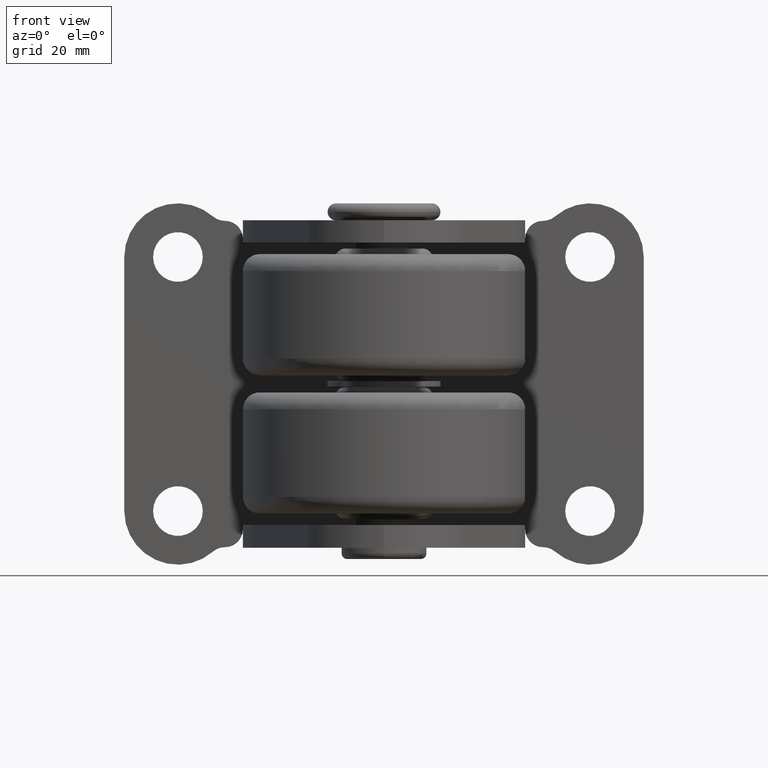
[diagram: clean part render]
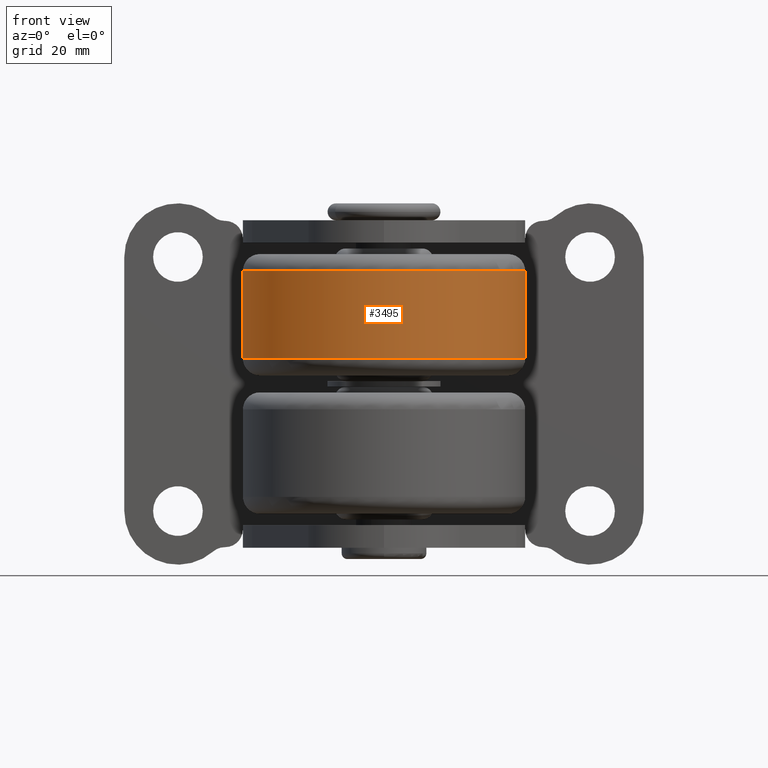
[diagram: same view with one face highlighted and labeled with its STEP entity id]
A machine part, front view. The second image highlights one B-rep face of the part: STEP entity #3495.
In plain terms, the highlighted cylindrical surface (partial cylindrical patch) has radius 25 mm, axis along (-0, 0, -1).
Its self-contained STEP definition (entity closure, byte-faithful):
#3431 = FACE_OUTER_BOUND ( 'NONE', #15441, .T. ) ;
#3495 = ADVANCED_FACE ( 'NONE', ( #3431 ), #5590, .T. ) ;
#3725 = VERTEX_POINT ( 'NONE', #5927 ) ;
#4016 = CARTESIAN_POINT ( 'NONE',  ( -31.89457894795601334, -3.565684009043932789, 9.000000000000000000 ) ) ;
#5326 = CARTESIAN_POINT ( 'NONE',  ( -6.894579010514385153, -3.563915416284980431, 28.50000000000000000 ) ) ;
#5590 = CYLINDRICAL_SURFACE ( 'NONE', #20646, 25.00000000000000355 ) ;
#5927 = CARTESIAN_POINT ( 'NONE',  ( 18.10542092692721639, -3.562146823525915273, 9.000000000000000000 ) ) ;
#5933 = CARTESIAN_POINT ( 'NONE',  ( -31.89457894795596360, -3.565684009043968317, 28.50000000000000000 ) ) ;
#6117 = CARTESIAN_POINT ( 'NONE',  ( -6.894579010514386042, -3.563915416284970217, 24.50000000000000000 ) ) ;
#7063 = CARTESIAN_POINT ( 'NONE',  ( -31.89457894795596360, -3.565684009043927460, 24.50000000000000000 ) ) ;
#7420 = LINE ( 'NONE', #5933, #11069 ) ;
#8390 = DIRECTION ( 'NONE',  ( -0.9999999974976637729, -7.074371036117772760E-05, 4.163336342344337520E-16 ) ) ;
#9354 = DIRECTION ( 'NONE',  ( -4.165792777624444963E-16, 3.472287279545308425E-15, -1.000000000000000000 ) ) ;
#9886 = DIRECTION ( 'NONE',  ( 0.9999999974976637729, 7.074371035958175490E-05, -4.163336342344336534E-16 ) ) ;
#10120 = VERTEX_POINT ( 'NONE', #4016 ) ;
#10403 = CARTESIAN_POINT ( 'NONE',  ( -6.894579010514392259, -3.563915416284910265, 9.000000000000000000 ) ) ;
#10646 = CIRCLE ( 'NONE', #15767, 25.00000000000000355 ) ;
#11069 = VECTOR ( 'NONE', #26090, 1000.000000000000000 ) ;
#11254 = EDGE_CURVE ( 'NONE', #18512, #3725, #13244, .T. ) ;
#11300 = VERTEX_POINT ( 'NONE', #7063 ) ;
#11656 = ORIENTED_EDGE ( 'NONE', *, *, #26318, .T. ) ;
#11807 = ORIENTED_EDGE ( 'NONE', *, *, #11254, .F. ) ;
#11851 = CARTESIAN_POINT ( 'NONE',  ( 18.10542092692721639, -3.562146823525945027, 24.50000000000000000 ) ) ;
#13244 = LINE ( 'NONE', #19538, #16260 ) ;
#13262 = EDGE_CURVE ( 'NONE', #18512, #11300, #23891, .T. ) ;
#15441 = EDGE_LOOP ( 'NONE', ( #18958, #16532, #11656, #11807 ) ) ;
#15767 = AXIS2_PLACEMENT_3D ( 'NONE', #10403, #20599, #18053 ) ;
#16260 = VECTOR ( 'NONE', #25998, 1000.000000000000000 ) ;
#16532 = ORIENTED_EDGE ( 'NONE', *, *, #23368, .T. ) ;
#18053 = DIRECTION ( 'NONE',  ( 0.9999999974976637729, 7.074371035958175490E-05, -3.469446951953613696E-16 ) ) ;
#18512 = VERTEX_POINT ( 'NONE', #11851 ) ;
#18593 = DIRECTION ( 'NONE',  ( -4.165792777624503635E-16, 3.472287279545307636E-15, -1.000000000000000000 ) ) ;
#18958 = ORIENTED_EDGE ( 'NONE', *, *, #13262, .T. ) ;
#19538 = CARTESIAN_POINT ( 'NONE',  ( 18.10542092692722349, -3.562146823525984995, 28.50000000000000000 ) ) ;
#20599 = DIRECTION ( 'NONE',  ( 3.471903388970064636E-16, -3.472292188376311921E-15, 1.000000000000000000 ) ) ;
#20646 = AXIS2_PLACEMENT_3D ( 'NONE', #5326, #9354, #9886 ) ;
#22166 = AXIS2_PLACEMENT_3D ( 'NONE', #6117, #18593, #8390 ) ;
#23368 = EDGE_CURVE ( 'NONE', #11300, #10120, #7420, .T. ) ;
#23891 = CIRCLE ( 'NONE', #22166, 24.99999999999999645 ) ;
#25998 = DIRECTION ( 'NONE',  ( -3.655652135276708603E-16, 3.472290888469502266E-15, -1.000000000000000000 ) ) ;
#26090 = DIRECTION ( 'NONE',  ( -3.655652135276708603E-16, 3.472290888469502266E-15, -1.000000000000000000 ) ) ;
#26318 = EDGE_CURVE ( 'NONE', #10120, #3725, #10646, .T. ) ;